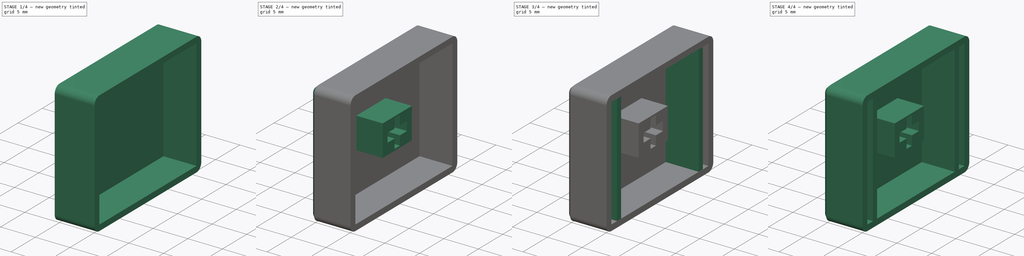
[diagram: build sequence overview — one tinted view per stage of 4, left to right]
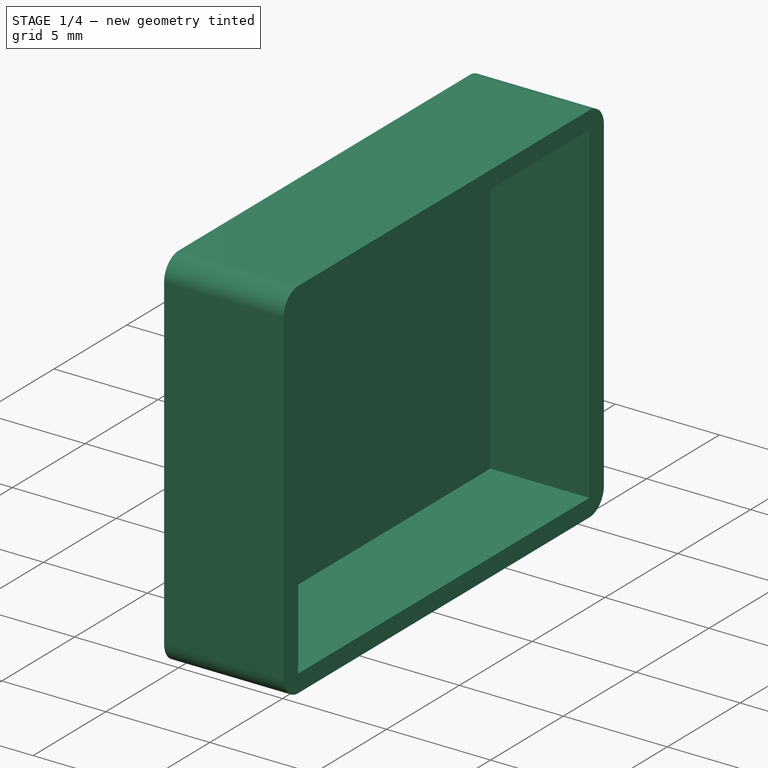
[diagram: stage 1 of 4 — iso view after this stage's code; geometry added in this stage tinted green]
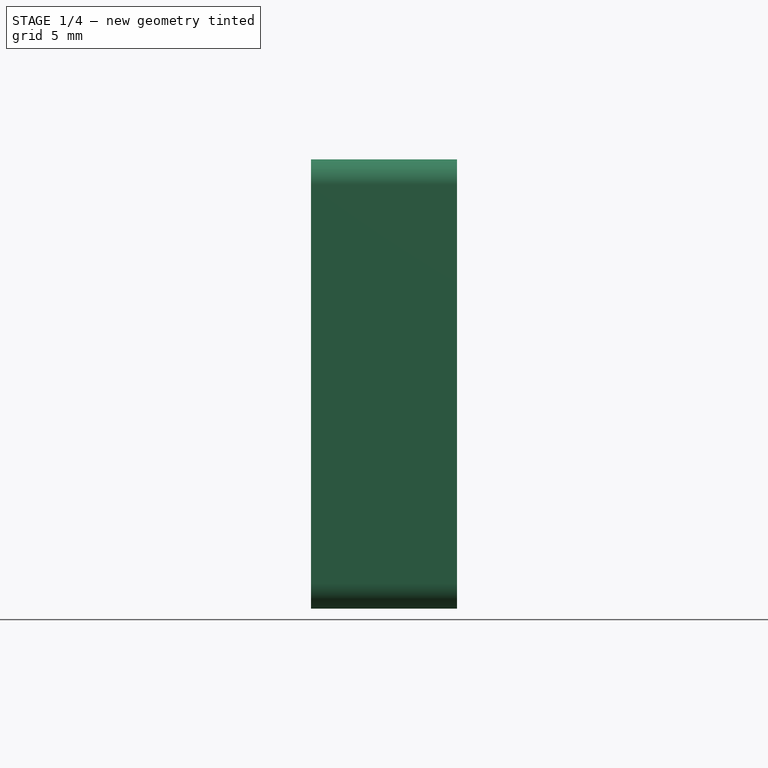
[diagram: stage 1 of 4 — front view after this stage's code; geometry added in this stage tinted green]
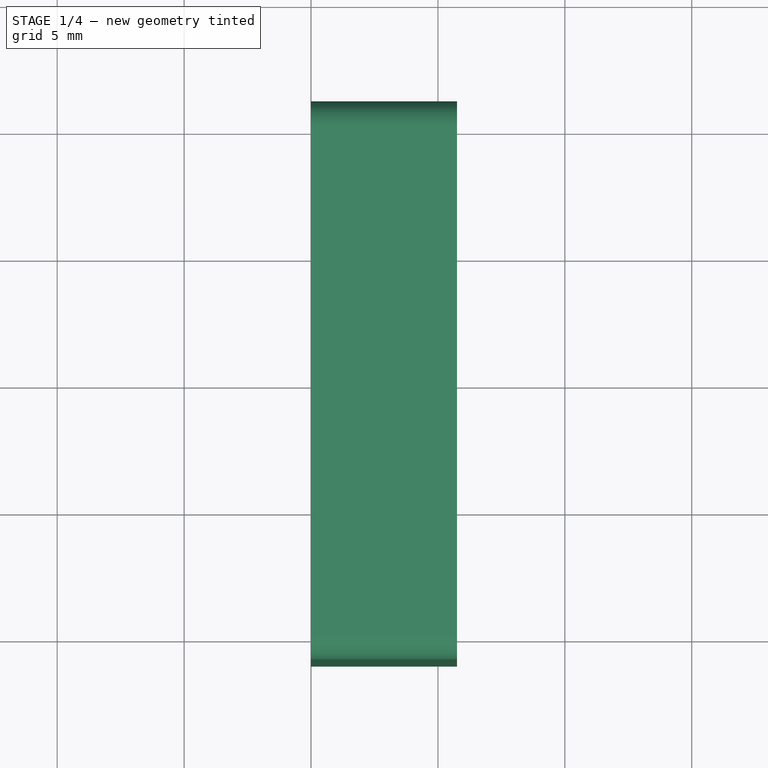
[diagram: stage 1 of 4 — top view after this stage's code; geometry added in this stage tinted green]
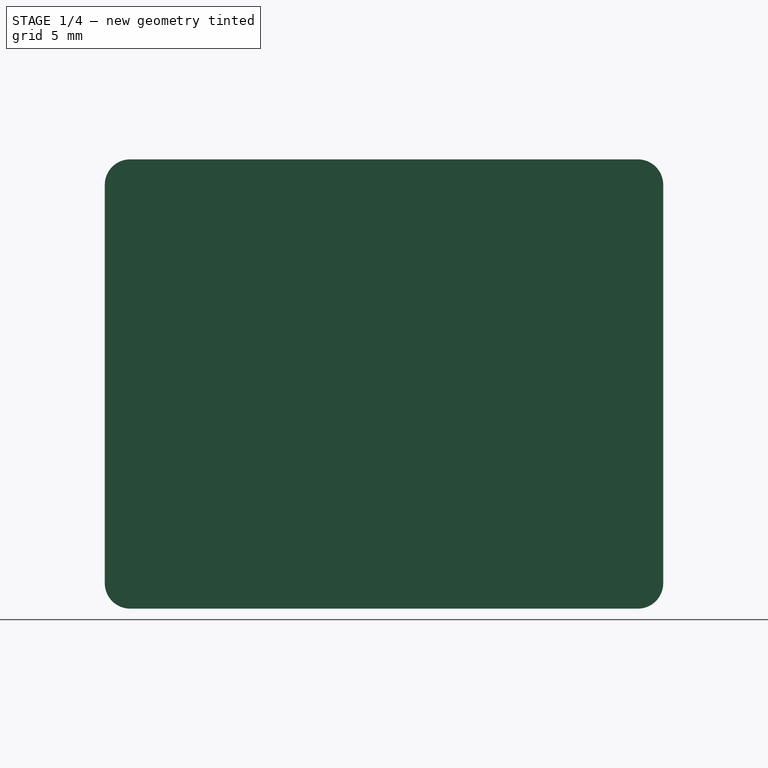
[diagram: stage 1 of 4 — right view after this stage's code; geometry added in this stage tinted green]
FCSTD DOCUMENT  (FreeCAD 1.0R39109 (Git))
Label: keycap
License: All rights reserved
LicenseURL: http://en.wikipedia.org/wiki/All_rights_reserved
objects: Sketcher::SketchObject×8, PartDesign::Pad×4, PartDesign::Pocket×4, PartDesign::Chamfer×2, PartDesign::Body×2
note: 48 computed .brp shape members not serialized (recipe doc carries the construction recipe); baked Part::Feature solids carry a one-line shape summary decoded from their .brp

FEATURE [PartDesign::Body] Body  label="1_U"
  AllowCompound = false
  Group = -> [Sketch,Pad,Sketch001,Pocket,Chamfer,Sketch002,Pad001,Sketch003,Pocket001]
  Origin = -> Origin
  Tip = -> Pocket001
FEATURE [Sketcher::SketchObject] Sketch004
  ArcFitTolerance = 0
  AttachmentSupport = -> [YZ_Plane001]
  FullyConstrained = true
  MakeInternals = false
  MapMode = 5
  Placement = pos=(0,0,0) rot=(0.57735,0.57735,0.57735;2.0944rad)
  expr: Constraints[22] = .Constraints.out_r
  expr: Constraints[23] = .Constraints.out_r
  expr: Constraints[24] = .Constraints.out_r
  sketch-geometry (12):
    g0: LineSegment StartX=-10 StartY=8.85 StartZ=0 EndX=10 EndY=8.85 EndZ=0
    g1: LineSegment StartX=11 StartY=7.85 StartZ=0 EndX=11 EndY=-7.85 EndZ=0
    g2: LineSegment StartX=10 StartY=-8.85 StartZ=0 EndX=-10 EndY=-8.85 EndZ=0
    g3: LineSegment StartX=-11 StartY=-7.85 StartZ=0 EndX=-11 EndY=7.85 EndZ=0
    g4: ArcOfCircle CenterX=-10 CenterY=7.85 CenterZ=0 NormalX=0 NormalY=0 NormalZ=1 AngleXU=0 Radius=1 StartAngle=1.5708 EndAngle=3.14159
    g5: GeomPoint [constr] X=-11 Y=8.85 Z=0
    g6: ArcOfCircle CenterX=10 CenterY=7.85 CenterZ=0 NormalX=0 NormalY=0 NormalZ=1 AngleXU=0 Radius=1 StartAngle=-2.22e-14 EndAngle=1.5708
    g7: GeomPoint [constr] X=11 Y=8.85 Z=0
    g8: ArcOfCircle CenterX=-10 CenterY=-7.85 CenterZ=0 NormalX=0 NormalY=0 NormalZ=1 AngleXU=0 Radius=1 StartAngle=3.14159 EndAngle=4.71239
    g9: GeomPoint [constr] X=-11 Y=-8.85 Z=0
    g10: ArcOfCircle CenterX=10 CenterY=-7.85 CenterZ=0 NormalX=0 NormalY=0 NormalZ=1 AngleXU=0 Radius=1 StartAngle=4.71239 EndAngle=6.28319
    g11: GeomPoint [constr] X=11 Y=-8.85 Z=0
  constraints (27):
    c: Horizontal(g0)
    c: Horizontal(g2)
    c: Vertical(g1)
    c: Vertical(g3)
    c: Symmetric(g5,g11,g-1)
    c: PointOnObject(g5,g3)
    c: PointOnObject(g5,g0)
    c: Tangent(g3,g4) = 1.5708
    c: Tangent(g0,g4) = 1.5708
    c: PointOnObject(g7,g0)
    c: PointOnObject(g7,g1)
    c: Tangent(g0,g6) = 1.5708
    c: Tangent(g1,g6) = 1.5708
    c: PointOnObject(g9,g3)
    c: PointOnObject(g9,g2)
    c: Tangent(g3,g8) = 1.5708
    c: Tangent(g2,g8) = 1.5708
    c: PointOnObject(g11,g2)
    c: PointOnObject(g11,g1)
    c: Tangent(g2,g10) = 1.5708
    c: Tangent(g1,g10) = 1.5708
    c: Radius(g6) = 1  'out_r'
    c: Radius(g4) = 1
    c: Radius(g8) = 1
    c: Radius(g10) = 1
    c: Distance(g3,g1) = 22
    c: Distance(g2,g0) = 17.7
FEATURE [PartDesign::Pad] Pad002
  Direction = (1,0,0)
  Length = 5.75
  Length2 = 10
  Placement = pos=(0,0,0) rot=(1,1,1;2.0944rad)
  Profile = -> Sketch004
  ReferenceAxis = -> Sketch004 [N_Axis]
  Suppressed = false
  Type = 0
FEATURE [Sketcher::SketchObject] Sketch005
  ArcFitTolerance = 0
  AttachmentSupport = -> [Pad002]
  FullyConstrained = true
  MakeInternals = false
  MapMode = 5
  Placement = pos=(5.75,-1.3e-15,6e-16) rot=(0.57735,0.57735,0.57735;2.0944rad)
  sketch-geometry (4):
    g0: LineSegment StartX=-10 StartY=8 StartZ=0 EndX=10 EndY=8 EndZ=0
    g1: LineSegment StartX=10 StartY=8 StartZ=0 EndX=10 EndY=-8 EndZ=0
    g2: LineSegment StartX=10 StartY=-8 StartZ=0 EndX=-10 EndY=-8 EndZ=0
    g3: LineSegment StartX=-10 StartY=-8 StartZ=0 EndX=-10 EndY=8 EndZ=0
  constraints (11):
    c: Coincident(g0,g1)
    c: Coincident(g1,g2)
    c: Coincident(g2,g3)
    c: Coincident(g3,g0)
    c: Horizontal(g0)
    c: Horizontal(g2)
    c: Vertical(g1)
    c: Vertical(g3)
    c: Symmetric(g0,g1,g-1)
    c: Distance(g2,g0) = 16  'inner_square_height'
    c: Distance(g0,g0) = 20
FEATURE [PartDesign::Pocket] Pocket002
  BaseFeature = -> Pad002
  Direction = (-1,0,0)
  Length = 4.76
  Length2 = 5
  Placement = pos=(0,0,0) rot=(1,1,1;2.0944rad)
  Profile = -> Sketch005
  ReferenceAxis = -> Sketch005 [N_Axis]
  Suppressed = false
  Type = 0
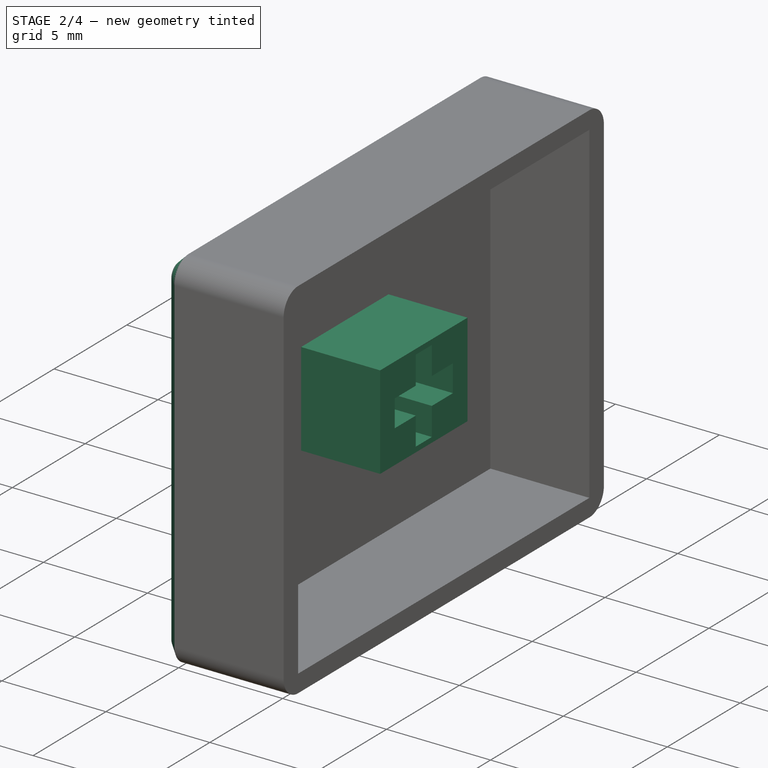
[diagram: stage 2 of 4 — iso view after this stage's code; geometry added in this stage tinted green]
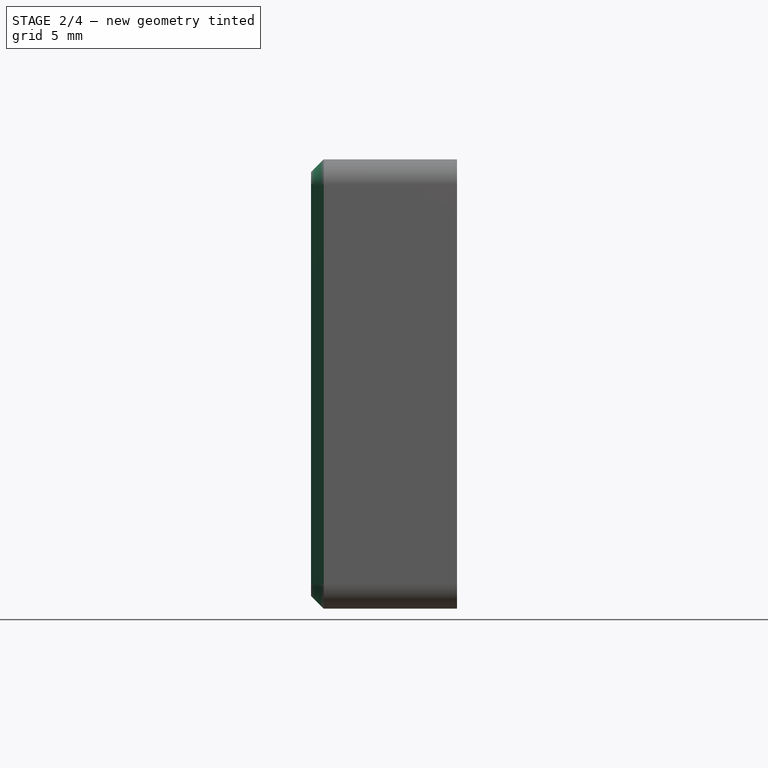
[diagram: stage 2 of 4 — front view after this stage's code; geometry added in this stage tinted green]
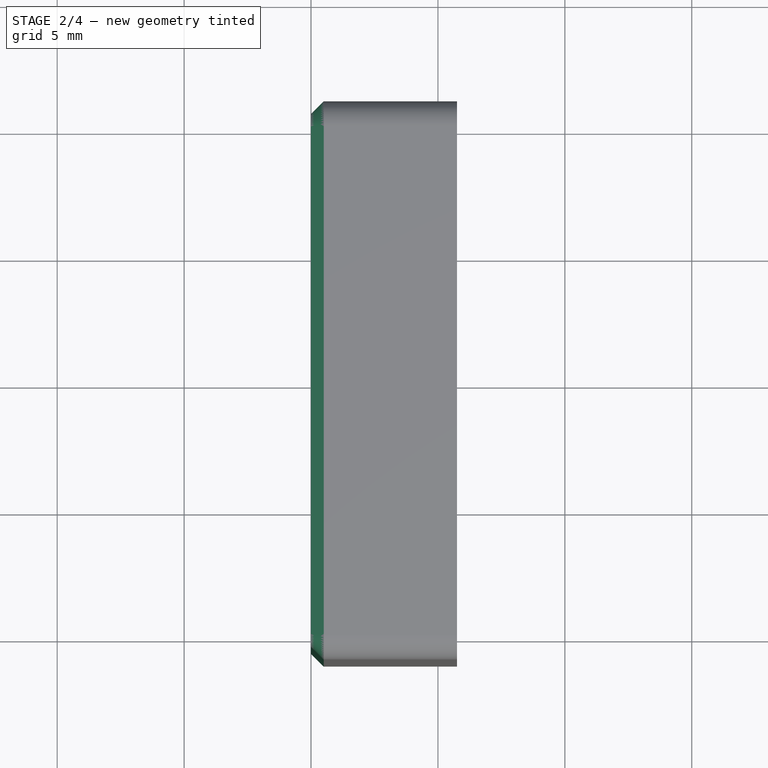
[diagram: stage 2 of 4 — top view after this stage's code; geometry added in this stage tinted green]
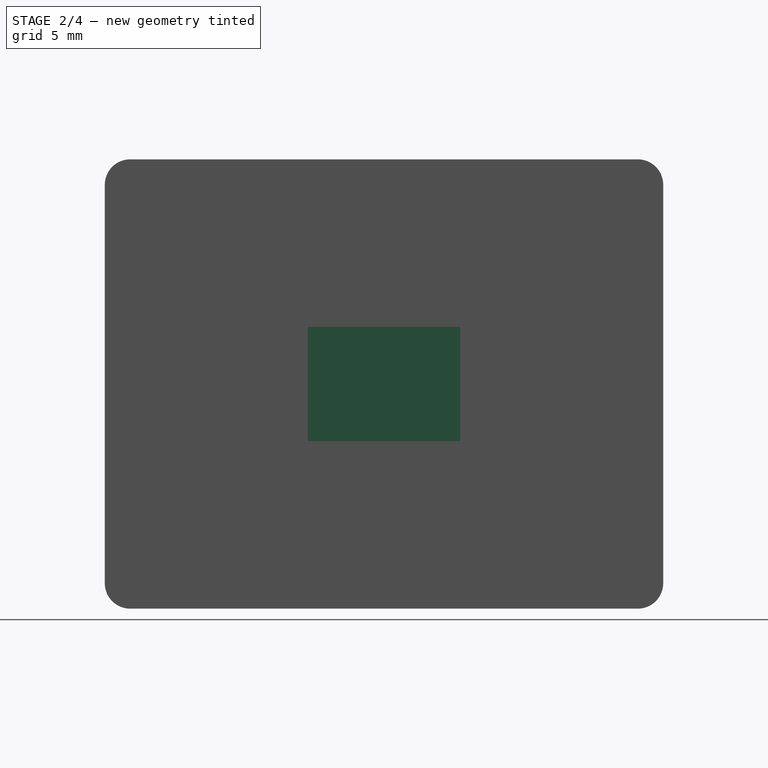
[diagram: stage 2 of 4 — right view after this stage's code; geometry added in this stage tinted green]
FEATURE [PartDesign::Chamfer] Chamfer001
  Angle = 45
  Base = -> Pocket002 [Face4]
  BaseFeature = -> Pocket002
  ChamferType = 0
  FlipDirection = false
  Placement = pos=(0,0,0) rot=(1,1,1;2.0944rad)
  Size = 0.5
  Size2 = 1
  SupportTransform = false
  Suppressed = false
  UseAllEdges = false
FEATURE [Sketcher::SketchObject] Sketch006
  ArcFitTolerance = 0
  AttachmentSupport = -> [Chamfer001]
  FullyConstrained = true
  MakeInternals = false
  MapMode = 5
  Placement = pos=(0.99,-2e-16,1e-16) rot=(0.57735,0.57735,0.57735;2.0944rad)
  sketch-geometry (4):
    g0: LineSegment StartX=-3 StartY=2.25 StartZ=0 EndX=3 EndY=2.25 EndZ=0
    g1: LineSegment StartX=3 StartY=2.25 StartZ=0 EndX=3 EndY=-2.25 EndZ=0
    g2: LineSegment StartX=3 StartY=-2.25 StartZ=0 EndX=-3 EndY=-2.25 EndZ=0
    g3: LineSegment StartX=-3 StartY=-2.25 StartZ=0 EndX=-3 EndY=2.25 EndZ=0
  constraints (11):
    c: Coincident(g0,g1)
    c: Coincident(g1,g2)
    c: Coincident(g2,g3)
    c: Coincident(g3,g0)
    c: Horizontal(g0)
    c: Horizontal(g2)
    c: Vertical(g1)
    c: Vertical(g3)
    c: Symmetric(g0,g1,g-1)
    c: Distance(g0,g0) = 6
    c: Distance(g1,g0) = 4.5
FEATURE [PartDesign::Pad] Pad003
  BaseFeature = -> Chamfer001
  Direction = (1,0,0)
  Length = 3.8
  Length2 = 10
  Placement = pos=(0,0,0) rot=(1,1,1;2.0944rad)
  Profile = -> Sketch006
  ReferenceAxis = -> Sketch006 [N_Axis]
  Suppressed = false
  Type = 0
FEATURE [Sketcher::SketchObject] Sketch007
  ArcFitTolerance = 0
  AttachmentSupport = -> [Pad003]
  FullyConstrained = true
  MakeInternals = false
  MapMode = 5
  Placement = pos=(4.79,-1.1e-15,5e-16) rot=(0.57735,0.57735,0.57735;2.0944rad)
  expr: Constraints[19] = .Constraints.cross_len
  expr: Constraints[30] = .Constraints.cross_width_vert
  expr: Constraints[31] = .Constraints.cross_width_horiz
  sketch-geometry (12):
    g0: LineSegment StartX=-0.55 StartY=2 StartZ=0 EndX=0.55 EndY=2 EndZ=0
    g1: LineSegment StartX=0.55 StartY=2 StartZ=0 EndX=0.55 EndY=0.65 EndZ=0
    g2: LineSegment StartX=0.55 StartY=-2 StartZ=0 EndX=-0.55 EndY=-2 EndZ=0
    g3: LineSegment StartX=-0.55 StartY=-2 StartZ=0 EndX=-0.55 EndY=-0.65 EndZ=0
    g4: LineSegment StartX=-2 StartY=0.65 StartZ=0 EndX=-0.55 EndY=0.65 EndZ=0
    g5: LineSegment StartX=2 StartY=0.65 StartZ=0 EndX=2 EndY=-0.65 EndZ=0
    g6: LineSegment StartX=2 StartY=-0.65 StartZ=0 EndX=0.55 EndY=-0.65 EndZ=0
    g7: LineSegment StartX=-2 StartY=-0.65 StartZ=0 EndX=-2 EndY=0.65 EndZ=0
    g8: LineSegment StartX=-0.55 StartY=0.65 StartZ=0 EndX=-0.55 EndY=2 EndZ=0
    g9: LineSegment StartX=0.55 StartY=-0.65 StartZ=0 EndX=0.55 EndY=-2 EndZ=0
    g10: LineSegment StartX=-0.55 StartY=-0.65 StartZ=0 EndX=-2 EndY=-0.65 EndZ=0
    g11: LineSegment StartX=0.55 StartY=0.65 StartZ=0 EndX=2 EndY=0.65 EndZ=0
  constraints (34):
    c: Coincident(g0,g1)
    c: Coincident(g9,g2)
    c: Coincident(g2,g3)
    c: Coincident(g8,g0)
    c: Horizontal(g0)
    c: Horizontal(g2)
    c: Vertical(g1)
    c: Vertical(g3)
    c: Coincident(g11,g5)
    c: Coincident(g5,g6)
    c: Coincident(g10,g7)
    c: Coincident(g7,g4)
    c: Horizontal(g4)
    c: Horizontal(g6)
    c: Vertical(g5)
    c: Vertical(g7)
    c: Symmetric(g0,g2,g-1)
    c: Symmetric(g4,g5,g-1)
    c: Distance(g4,g11) = 4  'cross_len'
    c: Distance(g2,g0) = 4
    c: Distance(g5,g11) = 1.3  'cross_width_horiz'
    c: Distance(g0,g0) = 1.1  'cross_width_vert'
    c: Coincident(g6,g9)
    c: Coincident(g10,g3)
    c: Coincident(g4,g8)
    c: Coincident(g11,g1)
    c: Angle(g8,g4) = 1.5708
    c: Angle(g11,g1) = 1.5708
    c: Angle(g10,g3) = 1.5708
    c: Angle(g9,g6) = 1.5708
    c: Distance(g2,g2) = 1.1
    c: Distance(g7,g4) = 1.3
    c: Equal(g8,g3)
    c: Equal(g4,g11)
FEATURE [PartDesign::Pocket] Pocket003
  BaseFeature = -> Pad003
  Direction = (-1,0,0)
  Length = 4
  Length2 = 5
  Placement = pos=(0,0,0) rot=(1,1,1;2.0944rad)
  Profile = -> Sketch007
  ReferenceAxis = -> Sketch007 [N_Axis]
  Suppressed = false
  Type = 0
FEATURE [PartDesign::Body] Body001  label="1.5_U"
  AllowCompound = false
  Group = -> [Sketch004,Pad002,Sketch005,Pocket002,Chamfer001,Sketch006,Pad003,Sketch007,Pocket003]
  Origin = -> Origin001
  Tip = -> Pocket003
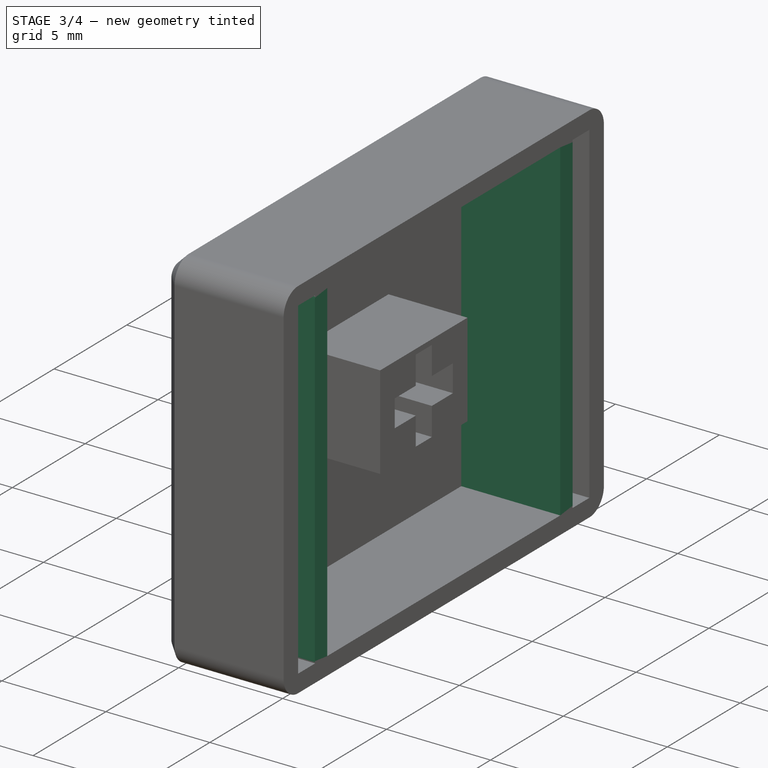
[diagram: stage 3 of 4 — iso view after this stage's code; geometry added in this stage tinted green]
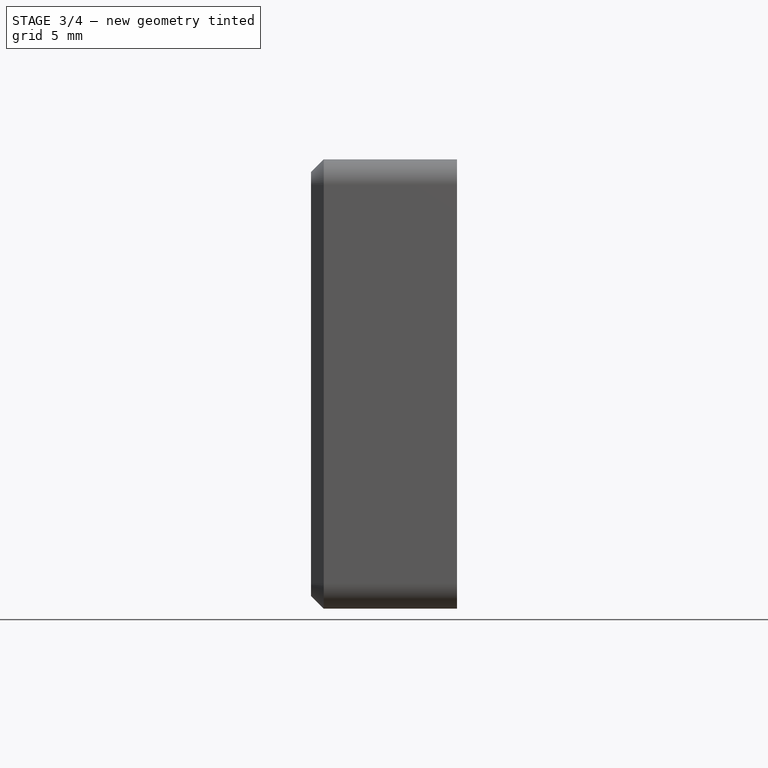
[diagram: stage 3 of 4 — front view after this stage's code; geometry added in this stage tinted green]
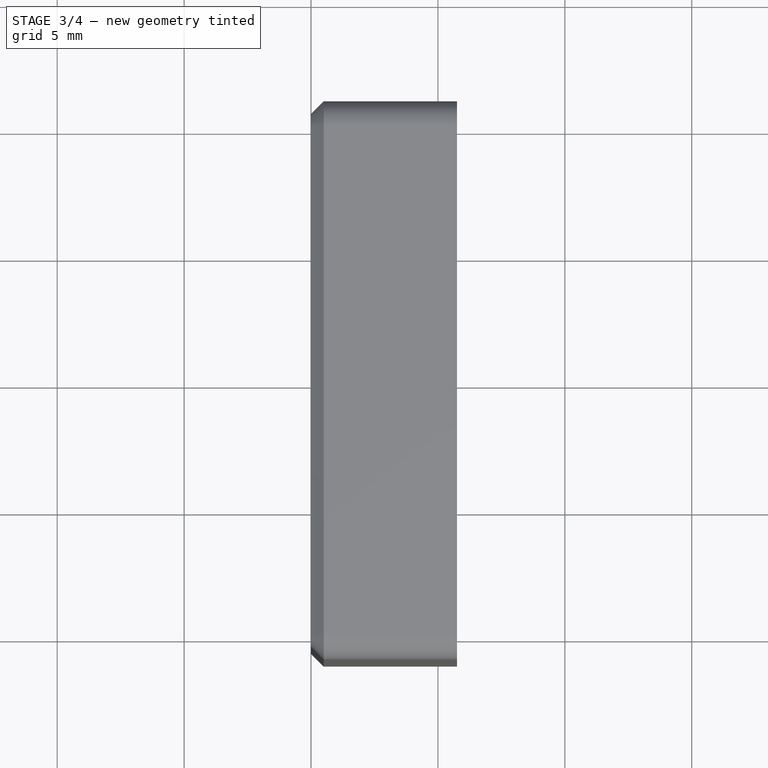
[diagram: stage 3 of 4 — top view after this stage's code; geometry added in this stage tinted green]
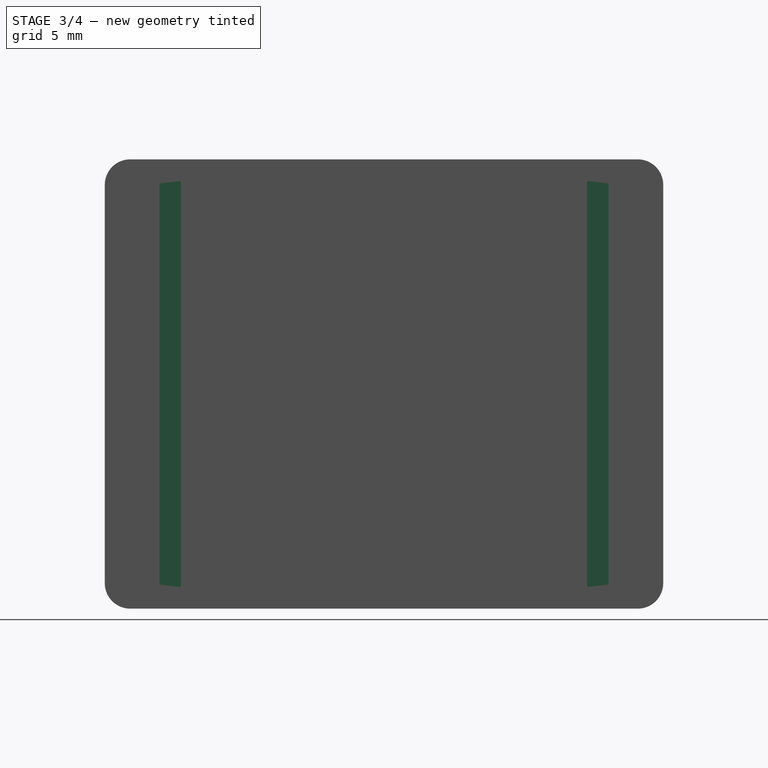
[diagram: stage 3 of 4 — right view after this stage's code; geometry added in this stage tinted green]
FEATURE [Sketcher::SketchObject] Sketch
  ArcFitTolerance = 0
  AttachmentSupport = -> [YZ_Plane]
  FullyConstrained = true
  MakeInternals = false
  MapMode = 5
  Placement = pos=(0,0,0) rot=(0.57735,0.57735,0.57735;2.0944rad)
  expr: Constraints[22] = .Constraints.out_r
  expr: Constraints[23] = .Constraints.out_r
  expr: Constraints[24] = .Constraints.out_r
  sketch-geometry (12):
    g0: LineSegment StartX=-7.85 StartY=8.85 StartZ=0 EndX=7.85 EndY=8.85 EndZ=0
    g1: LineSegment StartX=8.85 StartY=7.85 StartZ=0 EndX=8.85 EndY=-7.85 EndZ=0
    g2: LineSegment StartX=7.85 StartY=-8.85 StartZ=0 EndX=-7.85 EndY=-8.85 EndZ=0
    g3: LineSegment StartX=-8.85 StartY=-7.85 StartZ=0 EndX=-8.85 EndY=7.85 EndZ=0
    g4: ArcOfCircle CenterX=-7.85 CenterY=7.85 CenterZ=0 NormalX=0 NormalY=0 NormalZ=1 AngleXU=0 Radius=1 StartAngle=1.5708 EndAngle=3.14159
    g5: GeomPoint [constr] X=-8.85 Y=8.85 Z=0
    g6: ArcOfCircle CenterX=7.85 CenterY=7.85 CenterZ=0 NormalX=0 NormalY=0 NormalZ=1 AngleXU=0 Radius=1 StartAngle=4.364e-13 EndAngle=1.5708
    g7: GeomPoint [constr] X=8.85 Y=8.85 Z=0
    g8: ArcOfCircle CenterX=-7.85 CenterY=-7.85 CenterZ=0 NormalX=0 NormalY=0 NormalZ=1 AngleXU=0 Radius=1 StartAngle=3.14159 EndAngle=4.71239
    g9: GeomPoint [constr] X=-8.85 Y=-8.85 Z=0
    g10: ArcOfCircle CenterX=7.85 CenterY=-7.85 CenterZ=0 NormalX=0 NormalY=0 NormalZ=1 AngleXU=0 Radius=1 StartAngle=4.71239 EndAngle=6.28319
    g11: GeomPoint [constr] X=8.85 Y=-8.85 Z=0
  constraints (27):
    c: Horizontal(g0)
    c: Horizontal(g2)
    c: Vertical(g1)
    c: Vertical(g3)
    c: Symmetric(g5,g11,g-1)
    c: PointOnObject(g5,g3)
    c: PointOnObject(g5,g0)
    c: Tangent(g3,g4) = 1.5708
    c: Tangent(g0,g4) = 1.5708
    c: PointOnObject(g7,g0)
    c: PointOnObject(g7,g1)
    c: Tangent(g0,g6) = 1.5708
    c: Tangent(g1,g6) = 1.5708
    c: PointOnObject(g9,g3)
    c: PointOnObject(g9,g2)
    c: Tangent(g3,g8) = 1.5708
    c: Tangent(g2,g8) = 1.5708
    c: PointOnObject(g11,g2)
    c: PointOnObject(g11,g1)
    c: Tangent(g2,g10) = 1.5708
    c: Tangent(g1,g10) = 1.5708
    c: Radius(g6) = 1  'out_r'
    c: Radius(g4) = 1
    c: Radius(g8) = 1
    c: Radius(g10) = 1
    c: Distance(g3,g1) = 17.7
    c: Distance(g2,g0) = 17.7
FEATURE [PartDesign::Pad] Pad
  Direction = (1,0,0)
  Length = 5.75
  Length2 = 10
  Placement = pos=(0,0,0) rot=(1,1,1;2.0944rad)
  Profile = -> Sketch
  ReferenceAxis = -> Sketch [N_Axis]
  Suppressed = false
  Type = 0
FEATURE [Sketcher::SketchObject] Sketch001
  ArcFitTolerance = 0
  AttachmentSupport = -> [Pad]
  FullyConstrained = true
  MakeInternals = false
  MapMode = 5
  Placement = pos=(5.75,-1.3e-15,6e-16) rot=(0.57735,0.57735,0.57735;2.0944rad)
  sketch-geometry (4):
    g0: LineSegment StartX=-8 StartY=8 StartZ=0 EndX=8 EndY=8 EndZ=0
    g1: LineSegment StartX=8 StartY=8 StartZ=0 EndX=8 EndY=-8 EndZ=0
    g2: LineSegment StartX=8 StartY=-8 StartZ=0 EndX=-8 EndY=-8 EndZ=0
    g3: LineSegment StartX=-8 StartY=-8 StartZ=0 EndX=-8 EndY=8 EndZ=0
  constraints (11):
    c: Coincident(g0,g1)
    c: Coincident(g1,g2)
    c: Coincident(g2,g3)
    c: Coincident(g3,g0)
    c: Horizontal(g0)
    c: Horizontal(g2)
    c: Vertical(g1)
    c: Vertical(g3)
    c: Symmetric(g0,g1,g-1)
    c: Distance(g2,g0) = 16  'inner_square_height'
    c: Distance(g0,g0) = 16
FEATURE [PartDesign::Pocket] Pocket
  BaseFeature = -> Pad
  Direction = (-1,0,0)
  Length = 4.76
  Length2 = 5
  Placement = pos=(0,0,0) rot=(1,1,1;2.0944rad)
  Profile = -> Sketch001
  ReferenceAxis = -> Sketch001 [N_Axis]
  Suppressed = false
  Type = 0
FEATURE [PartDesign::Chamfer] Chamfer
  Angle = 45
  Base = -> Pocket [Face4]
  BaseFeature = -> Pocket
  ChamferType = 0
  FlipDirection = false
  Placement = pos=(0,0,0) rot=(1,1,1;2.0944rad)
  Size = 0.5
  Size2 = 1
  SupportTransform = false
  Suppressed = false
  UseAllEdges = false
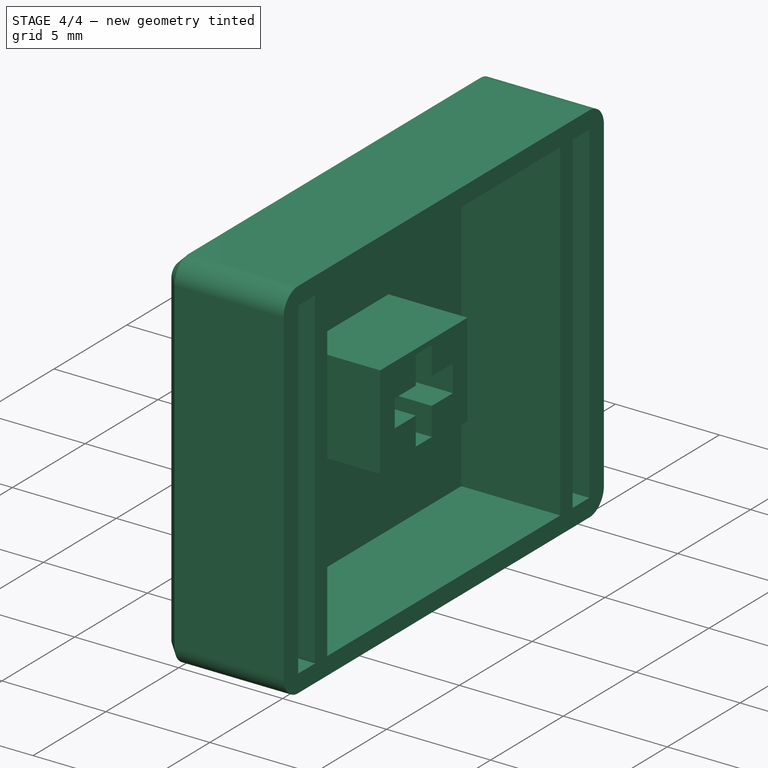
[diagram: stage 4 of 4 — iso view after this stage's code; geometry added in this stage tinted green]
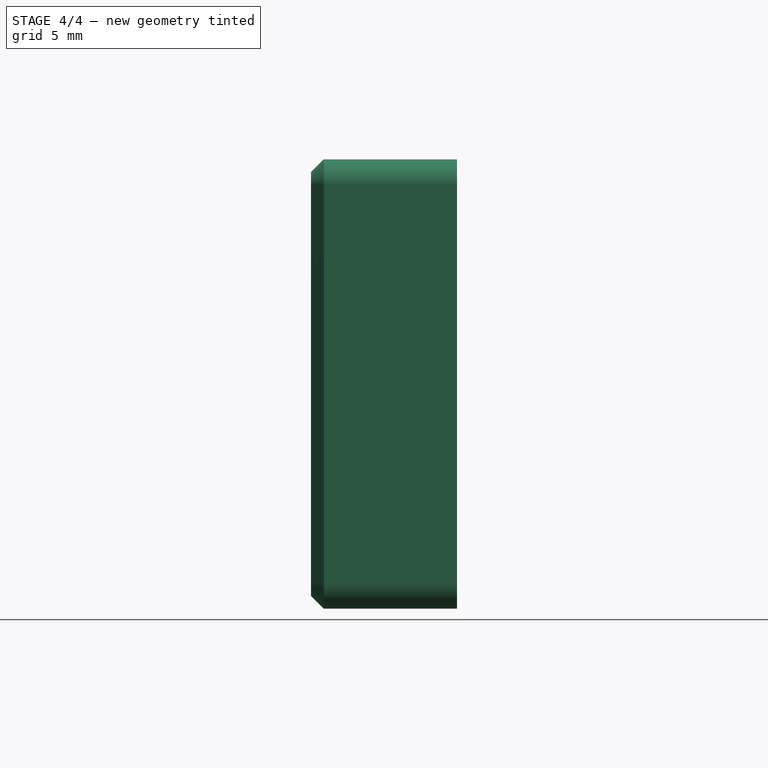
[diagram: stage 4 of 4 — front view after this stage's code; geometry added in this stage tinted green]
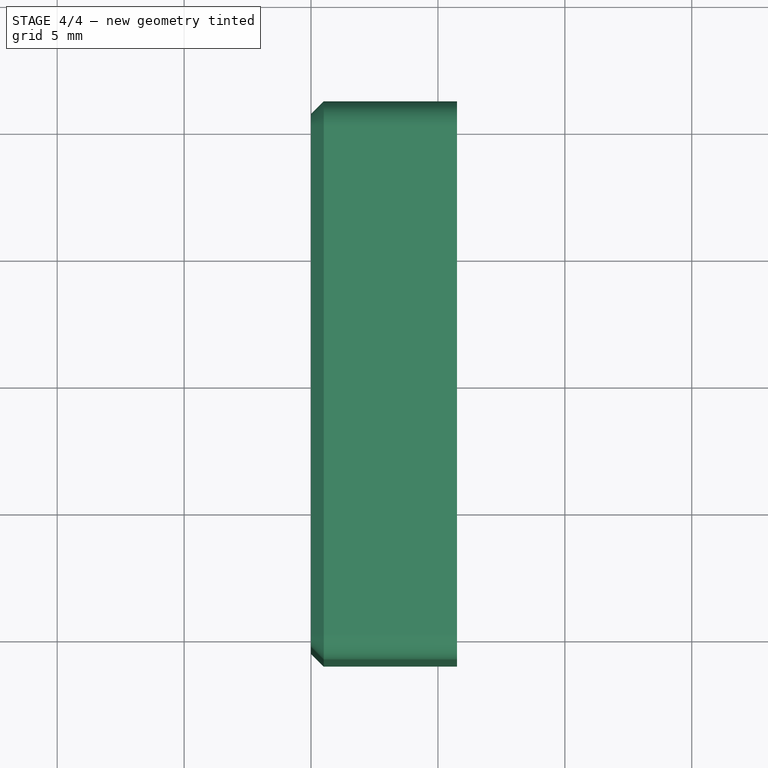
[diagram: stage 4 of 4 — top view after this stage's code; geometry added in this stage tinted green]
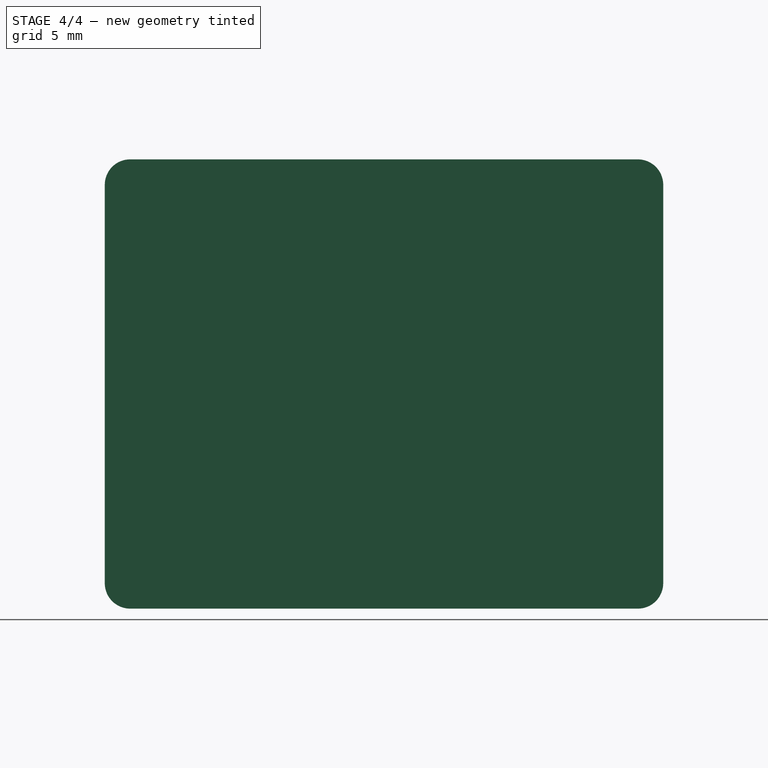
[diagram: stage 4 of 4 — right view after this stage's code; geometry added in this stage tinted green]
FEATURE [Sketcher::SketchObject] Sketch002
  ArcFitTolerance = 0
  AttachmentSupport = -> [Chamfer]
  FullyConstrained = true
  MakeInternals = false
  MapMode = 5
  Placement = pos=(0.99,-2e-16,1e-16) rot=(0.57735,0.57735,0.57735;2.0944rad)
  sketch-geometry (4):
    g0: LineSegment StartX=-3 StartY=2.25 StartZ=0 EndX=3 EndY=2.25 EndZ=0
    g1: LineSegment StartX=3 StartY=2.25 StartZ=0 EndX=3 EndY=-2.25 EndZ=0
    g2: LineSegment StartX=3 StartY=-2.25 StartZ=0 EndX=-3 EndY=-2.25 EndZ=0
    g3: LineSegment StartX=-3 StartY=-2.25 StartZ=0 EndX=-3 EndY=2.25 EndZ=0
  constraints (11):
    c: Coincident(g0,g1)
    c: Coincident(g1,g2)
    c: Coincident(g2,g3)
    c: Coincident(g3,g0)
    c: Horizontal(g0)
    c: Horizontal(g2)
    c: Vertical(g1)
    c: Vertical(g3)
    c: Symmetric(g0,g1,g-1)
    c: Distance(g0,g0) = 6
    c: Distance(g1,g0) = 4.5
FEATURE [PartDesign::Pad] Pad001
  BaseFeature = -> Chamfer
  Direction = (1,0,0)
  Length = 3.8
  Length2 = 10
  Placement = pos=(0,0,0) rot=(1,1,1;2.0944rad)
  Profile = -> Sketch002
  ReferenceAxis = -> Sketch002 [N_Axis]
  Suppressed = false
  Type = 0
FEATURE [Sketcher::SketchObject] Sketch003
  ArcFitTolerance = 0
  AttachmentSupport = -> [Pad001]
  FullyConstrained = true
  MakeInternals = false
  MapMode = 5
  Placement = pos=(4.79,-1.1e-15,5e-16) rot=(0.57735,0.57735,0.57735;2.0944rad)
  expr: Constraints[19] = .Constraints.cross_len
  expr: Constraints[30] = .Constraints.cross_width_vert
  expr: Constraints[31] = .Constraints.cross_width_horiz
  sketch-geometry (12):
    g0: LineSegment StartX=-0.55 StartY=2 StartZ=0 EndX=0.55 EndY=2 EndZ=0
    g1: LineSegment StartX=0.55 StartY=2 StartZ=0 EndX=0.55 EndY=0.65 EndZ=0
    g2: LineSegment StartX=0.55 StartY=-2 StartZ=0 EndX=-0.55 EndY=-2 EndZ=0
    g3: LineSegment StartX=-0.55 StartY=-2 StartZ=0 EndX=-0.55 EndY=-0.65 EndZ=0
    g4: LineSegment StartX=-2 StartY=0.65 StartZ=0 EndX=-0.55 EndY=0.65 EndZ=0
    g5: LineSegment StartX=2 StartY=0.65 StartZ=0 EndX=2 EndY=-0.65 EndZ=0
    g6: LineSegment StartX=2 StartY=-0.65 StartZ=0 EndX=0.55 EndY=-0.65 EndZ=0
    g7: LineSegment StartX=-2 StartY=-0.65 StartZ=0 EndX=-2 EndY=0.65 EndZ=0
    g8: LineSegment StartX=-0.55 StartY=0.65 StartZ=0 EndX=-0.55 EndY=2 EndZ=0
    g9: LineSegment StartX=0.55 StartY=-0.65 StartZ=0 EndX=0.55 EndY=-2 EndZ=0
    g10: LineSegment StartX=-0.55 StartY=-0.65 StartZ=0 EndX=-2 EndY=-0.65 EndZ=0
    g11: LineSegment StartX=0.55 StartY=0.65 StartZ=0 EndX=2 EndY=0.65 EndZ=0
  constraints (34):
    c: Coincident(g0,g1)
    c: Coincident(g9,g2)
    c: Coincident(g2,g3)
    c: Coincident(g8,g0)
    c: Horizontal(g0)
    c: Horizontal(g2)
    c: Vertical(g1)
    c: Vertical(g3)
    c: Coincident(g11,g5)
    c: Coincident(g5,g6)
    c: Coincident(g10,g7)
    c: Coincident(g7,g4)
    c: Horizontal(g4)
    c: Horizontal(g6)
    c: Vertical(g5)
    c: Vertical(g7)
    c: Symmetric(g0,g2,g-1)
    c: Symmetric(g4,g5,g-1)
    c: Distance(g4,g11) = 4  'cross_len'
    c: Distance(g2,g0) = 4
    c: Distance(g5,g11) = 1.3  'cross_width_horiz'
    c: Distance(g0,g0) = 1.1  'cross_width_vert'
    c: Coincident(g6,g9)
    c: Coincident(g10,g3)
    c: Coincident(g4,g8)
    c: Coincident(g11,g1)
    c: Angle(g8,g4) = 1.5708
    c: Angle(g11,g1) = 1.5708
    c: Angle(g10,g3) = 1.5708
    c: Angle(g9,g6) = 1.5708
    c: Distance(g2,g2) = 1.1
    c: Distance(g7,g4) = 1.3
    c: Equal(g8,g3)
    c: Equal(g4,g11)
FEATURE [PartDesign::Pocket] Pocket001
  BaseFeature = -> Pad001
  Direction = (-1,0,0)
  Length = 4
  Length2 = 5
  Placement = pos=(0,0,0) rot=(1,1,1;2.0944rad)
  Profile = -> Sketch003
  ReferenceAxis = -> Sketch003 [N_Axis]
  Suppressed = false
  Type = 0
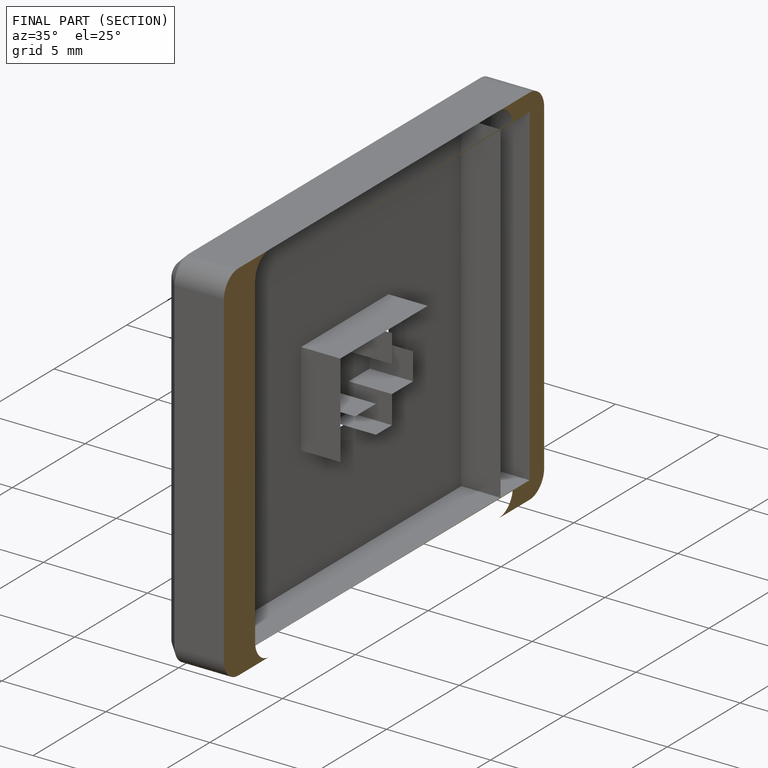
[diagram: finished part — half-section view (interior)]
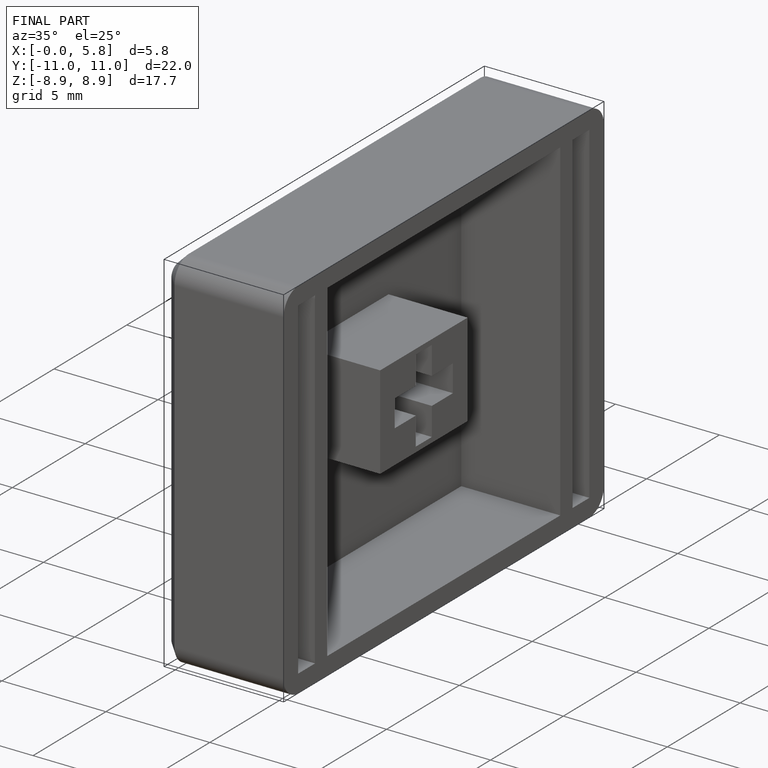
[diagram: finished part — iso view with bounding-box wireframe]
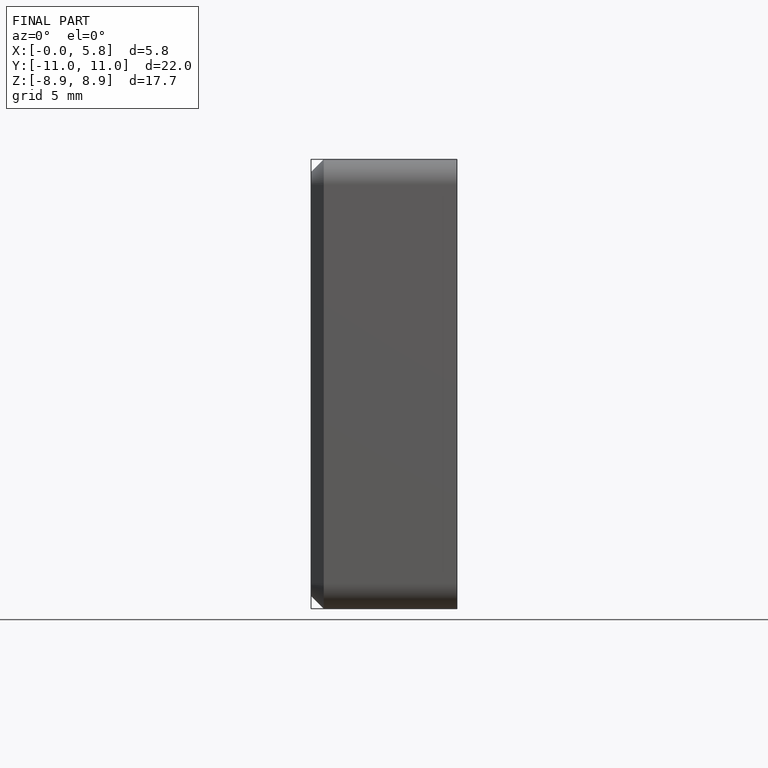
[diagram: finished part — front view with bounding-box wireframe]
